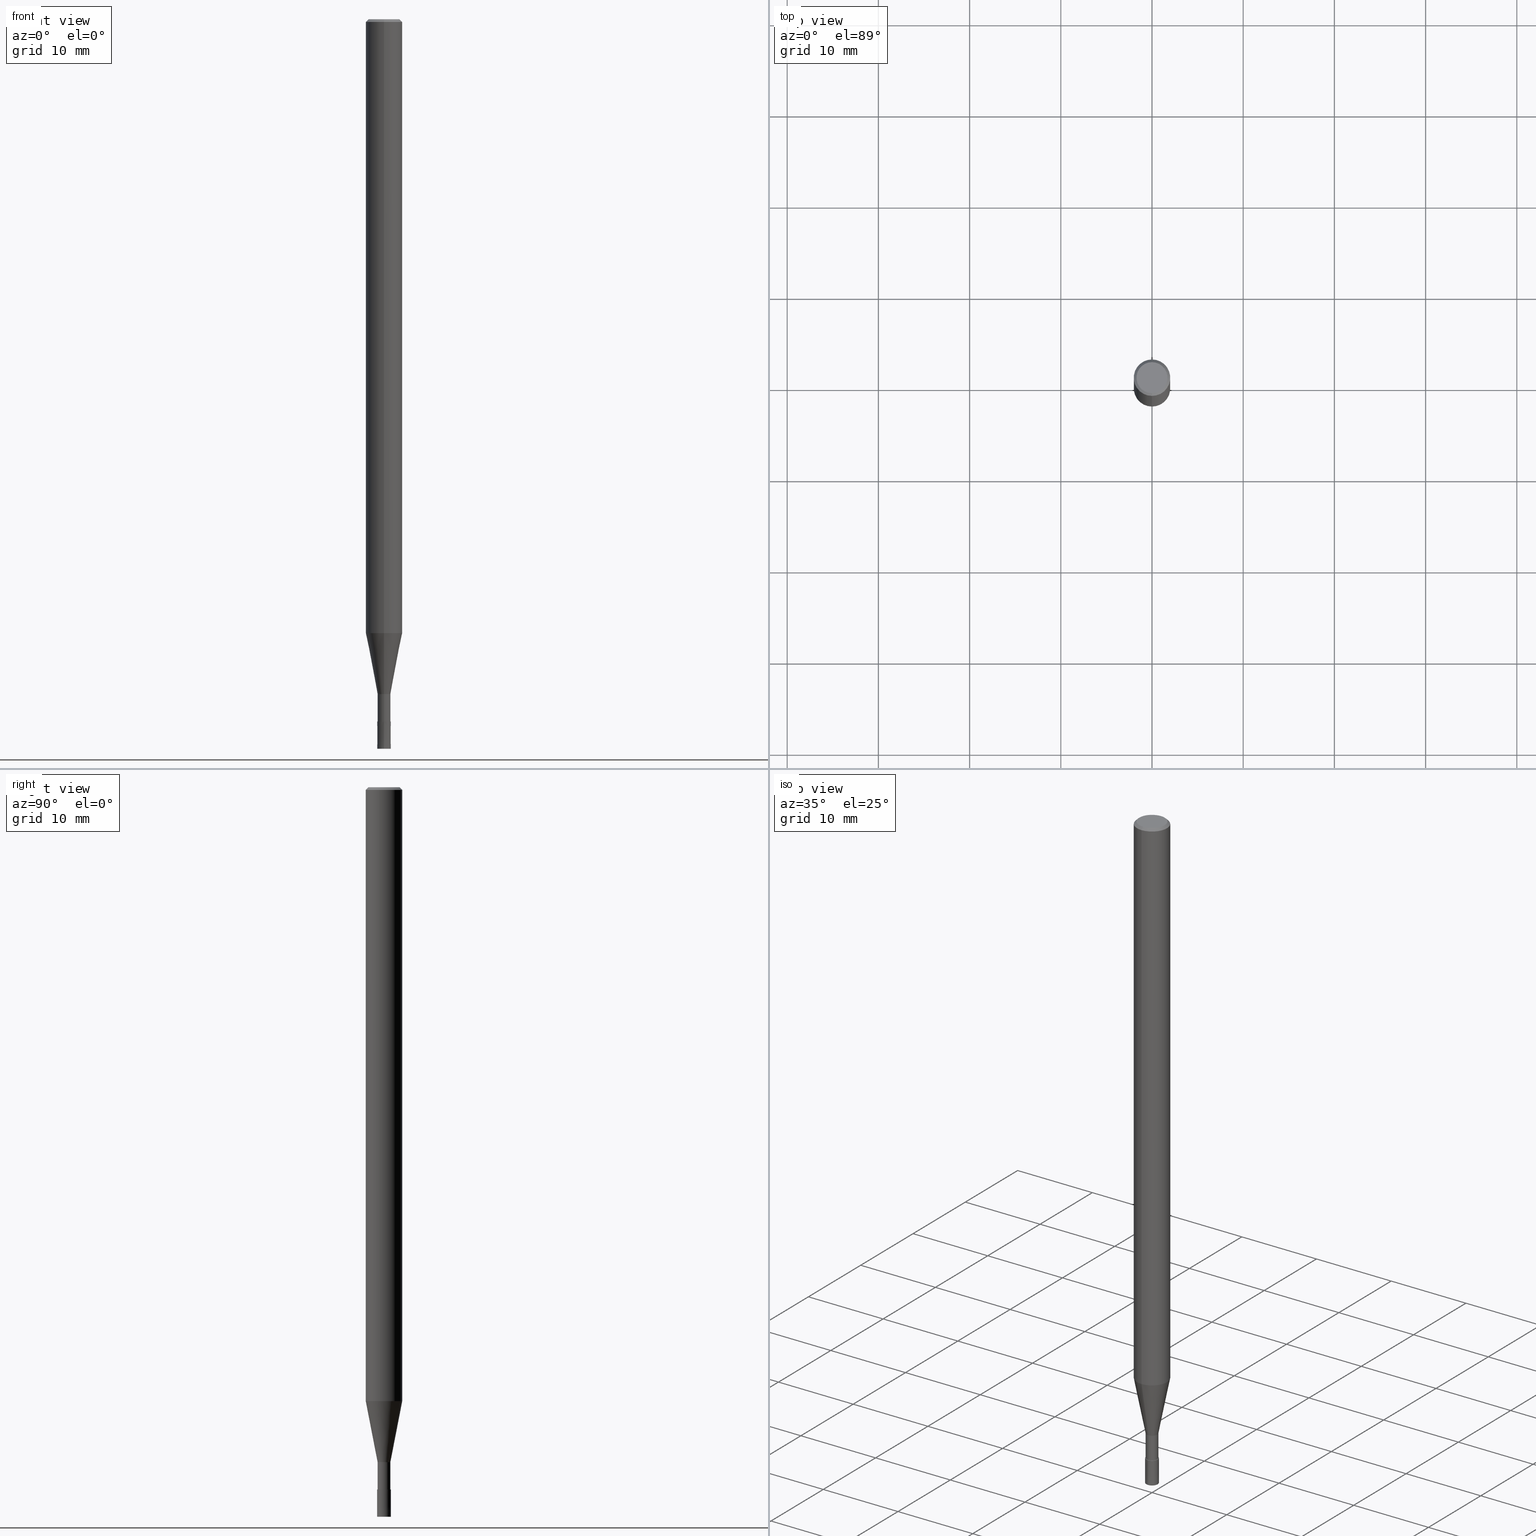
[diagram: canonical four-view strip — front | top / right | iso, engineering-drawing reading convention]
A machine part, canonical four-view strip (front | top / right | iso — engineering-drawing reading convention). The complete STEP part file that produces these views, byte-faithful:
ISO-10303-21;
HEADER;
FILE_DESCRIPTION(('no description'),'unknown implementation level');
FILE_NAME('CPRL2015-6-Huellk.stp','  ',('CIMSOURCE GmbH'),('CADClick - KiM GmbH - www.kimweb.de'),'unknown preprocess','ACIS','unknown authorization');
FILE_SCHEMA(('automotive_design'));
ENDSEC;
DATA;
#1=MECHANICAL_DESIGN_GEOMETRIC_PRESENTATION_REPRESENTATION(' ',(#14,#15,#16,#17,#18,#19,#20,#21,#22,#23,#24,#25,#26,#27,#28,#29,#30,#31,#32,#33,#34,#35,#36,#37,#38,#39,#40,#41,#42,#43,#44,#45,#46,#47,#48,#49,#50,#51,#52,#53,#54,#55,#56,#57,#58,#59,#60,#61,#62,#63,#64,#65,#66,#67,#68,#69,#70,#71,#72),#10);
#2=PRODUCT_DEFINITION_CONTEXT('',#73,'design');
#3=APPLICATION_PROTOCOL_DEFINITION('INTERNATIONAL STANDARD','automotive_design',1994,#73);
#4=PRODUCT_CATEGORY_RELATIONSHIP('NONE','NONE',#74,#75);
#5=SHAPE_DEFINITION_REPRESENTATION(#76,#77);
#6=PRODUCT_DEFINITION_CONTEXT('',#78,'design');
#7=APPLICATION_PROTOCOL_DEFINITION('INTERNATIONAL STANDARD','automotive_design',1994,#78);
#8=PRODUCT_CATEGORY_RELATIONSHIP('NONE','NONE',#79,#80);
#9=SHAPE_DEFINITION_REPRESENTATION(#81,#82);
#10= (GEOMETRIC_REPRESENTATION_CONTEXT(3)GLOBAL_UNCERTAINTY_ASSIGNED_CONTEXT((#85))GLOBAL_UNIT_ASSIGNED_CONTEXT((#87,#88,#89))REPRESENTATION_CONTEXT('NONE','WORKSPACE'));
#14=STYLED_ITEM('',(#91),#92);
#15=STYLED_ITEM('',(#93),#94);
#16=STYLED_ITEM('',(#95),#96);
#17=STYLED_ITEM('',(#97),#98);
#18=STYLED_ITEM('',(#99),#100);
#19=STYLED_ITEM('',(#101),#102);
#20=STYLED_ITEM('',(#103),#104);
#21=STYLED_ITEM('',(#105),#106);
#22=STYLED_ITEM('',(#107),#108);
#23=STYLED_ITEM('',(#109),#110);
#24=STYLED_ITEM('',(#111),#112);
#25=STYLED_ITEM('',(#113),#114);
#26=STYLED_ITEM('',(#115),#116);
#27=STYLED_ITEM('',(#117),#118);
#28=STYLED_ITEM('',(#119),#120);
#29=STYLED_ITEM('',(#121),#122);
#30=STYLED_ITEM('',(#123),#124);
#31=STYLED_ITEM('',(#125),#126);
#32=STYLED_ITEM('',(#127),#128);
#33=STYLED_ITEM('',(#129),#130);
#34=STYLED_ITEM('',(#131),#132);
#35=STYLED_ITEM('',(#133),#134);
#36=STYLED_ITEM('',(#135),#136);
#37=STYLED_ITEM('',(#137),#138);
#38=STYLED_ITEM('',(#139),#140);
#39=STYLED_ITEM('',(#141),#142);
#40=STYLED_ITEM('',(#143),#144);
#41=STYLED_ITEM('',(#145),#146);
#42=STYLED_ITEM('',(#147),#148);
#43=STYLED_ITEM('',(#149),#150);
#44=STYLED_ITEM('',(#151),#152);
#45=STYLED_ITEM('',(#153),#154);
#46=STYLED_ITEM('',(#155),#156);
#47=STYLED_ITEM('',(#157),#158);
#48=STYLED_ITEM('',(#159),#160);
#49=STYLED_ITEM('',(#161),#162);
#50=STYLED_ITEM('',(#163),#164);
#51=STYLED_ITEM('',(#165),#166);
#52=STYLED_ITEM('',(#167),#168);
#53=STYLED_ITEM('',(#169),#170);
#54=STYLED_ITEM('',(#171),#172);
#55=STYLED_ITEM('',(#173),#174);
#56=STYLED_ITEM('',(#175),#176);
#57=STYLED_ITEM('',(#177),#178);
#58=STYLED_ITEM('',(#179),#180);
#59=STYLED_ITEM('',(#181),#182);
#60=STYLED_ITEM('',(#183),#184);
#61=STYLED_ITEM('',(#185),#186);
#62=STYLED_ITEM('',(#187),#188);
#63=STYLED_ITEM('',(#189),#190);
#64=STYLED_ITEM('',(#191),#192);
#65=STYLED_ITEM('',(#193),#194);
#66=STYLED_ITEM('',(#195),#196);
#67=STYLED_ITEM('',(#197),#198);
#68=STYLED_ITEM('',(#199),#200);
#69=STYLED_ITEM('',(#201),#202);
#70=STYLED_ITEM('',(#203),#204);
#71=STYLED_ITEM('',(#205),#206);
#72=STYLED_ITEM('',(#207),#208);
#73=APPLICATION_CONTEXT(' ');
#74=PRODUCT_CATEGORY('part','NONE');
#75=PRODUCT_RELATED_PRODUCT_CATEGORY('detail',' ',(#209));
#76=PRODUCT_DEFINITION_SHAPE('NONE','NONE',#210);
#77=ADVANCED_BREP_SHAPE_REPRESENTATION('1',(#208,#211),#10);
#78=APPLICATION_CONTEXT(' ');
#79=PRODUCT_CATEGORY('part','NONE');
#80=PRODUCT_RELATED_PRODUCT_CATEGORY('detail',' ',(#212));
#81=PRODUCT_DEFINITION_SHAPE('NONE','NONE',#213);
#82=ADVANCED_BREP_SHAPE_REPRESENTATION('2',(#178,#214),#10);
#85=UNCERTAINTY_MEASURE_WITH_UNIT(LENGTH_MEASURE(1.0E-006),#87,'','');
#87= (CONVERSION_BASED_UNIT('MILLIMETRE',#217)LENGTH_UNIT()NAMED_UNIT(#220));
#88= (NAMED_UNIT(#222)PLANE_ANGLE_UNIT()SI_UNIT($,.RADIAN.));
#89= (NAMED_UNIT(#222)SOLID_ANGLE_UNIT()SI_UNIT($,.STERADIAN.));
#91=PRESENTATION_STYLE_ASSIGNMENT((#228));
#92=VERTEX_POINT('',#229);
#93=PRESENTATION_STYLE_ASSIGNMENT((#230));
#94=EDGE_CURVE('',#120,#158,#231,.T.);
#95=PRESENTATION_STYLE_ASSIGNMENT((#232));
#96=EDGE_CURVE('',#110,#180,#233,.T.);
#97=PRESENTATION_STYLE_ASSIGNMENT((#234));
#98=EDGE_CURVE('',#180,#174,#235,.T.);
#99=PRESENTATION_STYLE_ASSIGNMENT((#236));
#100=ADVANCED_FACE('',(#237),#238,.T.);
#101=PRESENTATION_STYLE_ASSIGNMENT((#239));
#102=EDGE_CURVE('',#158,#130,#240,.T.);
#103=PRESENTATION_STYLE_ASSIGNMENT((#241));
#104=EDGE_CURVE('',#114,#110,#242,.T.);
#105=PRESENTATION_STYLE_ASSIGNMENT((#243));
#106=ADVANCED_FACE('',(#244),#245,.T.);
#107=PRESENTATION_STYLE_ASSIGNMENT((#246));
#108=ADVANCED_FACE('',(#247),#248,.T.);
#109=PRESENTATION_STYLE_ASSIGNMENT((#249));
#110=VERTEX_POINT('',#250);
#111=PRESENTATION_STYLE_ASSIGNMENT((#251));
#112=EDGE_CURVE('',#150,#194,#252,.T.);
#113=PRESENTATION_STYLE_ASSIGNMENT((#253));
#114=VERTEX_POINT('',#254);
#115=PRESENTATION_STYLE_ASSIGNMENT((#255));
#116=EDGE_CURVE('',#140,#144,#256,.T.);
#117=PRESENTATION_STYLE_ASSIGNMENT((#257));
#118=EDGE_CURVE('',#92,#188,#258,.T.);
#119=PRESENTATION_STYLE_ASSIGNMENT((#259));
#120=VERTEX_POINT('',#260);
#121=PRESENTATION_STYLE_ASSIGNMENT((#261));
#122=EDGE_CURVE('',#188,#92,#262,.T.);
#123=PRESENTATION_STYLE_ASSIGNMENT((#263));
#124=EDGE_CURVE('',#164,#188,#264,.T.);
#125=PRESENTATION_STYLE_ASSIGNMENT((#265));
#126=EDGE_CURVE('',#130,#158,#266,.T.);
#127=PRESENTATION_STYLE_ASSIGNMENT((#267));
#128=VERTEX_POINT('',#268);
#129=PRESENTATION_STYLE_ASSIGNMENT((#269));
#130=VERTEX_POINT('',#270);
#131=PRESENTATION_STYLE_ASSIGNMENT((#271));
#132=EDGE_CURVE('',#120,#164,#272,.T.);
#133=PRESENTATION_STYLE_ASSIGNMENT((#273));
#134=EDGE_CURVE('',#164,#120,#274,.T.);
#135=PRESENTATION_STYLE_ASSIGNMENT((#275));
#136=ADVANCED_FACE('',(#276),#277,.T.);
#137=PRESENTATION_STYLE_ASSIGNMENT((#278));
#138=EDGE_CURVE('',#130,#164,#279,.T.);
#139=PRESENTATION_STYLE_ASSIGNMENT((#280));
#140=VERTEX_POINT('',#281);
#141=PRESENTATION_STYLE_ASSIGNMENT((#282));
#142=VERTEX_POINT('',#283);
#143=PRESENTATION_STYLE_ASSIGNMENT((#284));
#144=VERTEX_POINT('',#285);
#145=PRESENTATION_STYLE_ASSIGNMENT((#286));
#146=EDGE_CURVE('',#142,#128,#287,.T.);
#147=PRESENTATION_STYLE_ASSIGNMENT((#288));
#148=ADVANCED_FACE('',(#289),#290,.T.);
#149=PRESENTATION_STYLE_ASSIGNMENT((#291));
#150=VERTEX_POINT('',#292);
#151=PRESENTATION_STYLE_ASSIGNMENT((#293));
#152=EDGE_CURVE('',#174,#114,#294,.T.);
#153=PRESENTATION_STYLE_ASSIGNMENT((#295));
#154=EDGE_CURVE('',#144,#140,#296,.T.);
#155=PRESENTATION_STYLE_ASSIGNMENT((#297));
#156=EDGE_CURVE('',#180,#194,#298,.T.);
#157=PRESENTATION_STYLE_ASSIGNMENT((#299));
#158=VERTEX_POINT('',#300);
#159=PRESENTATION_STYLE_ASSIGNMENT((#301));
#160=EDGE_CURVE('',#174,#180,#302,.T.);
#161=PRESENTATION_STYLE_ASSIGNMENT((#303));
#162=EDGE_CURVE('',#150,#174,#304,.T.);
#163=PRESENTATION_STYLE_ASSIGNMENT((#305));
#164=VERTEX_POINT('',#306);
#165=PRESENTATION_STYLE_ASSIGNMENT((#307));
#166=EDGE_CURVE('',#194,#150,#308,.T.);
#167=PRESENTATION_STYLE_ASSIGNMENT((#309));
#168=EDGE_CURVE('',#92,#120,#310,.T.);
#169=PRESENTATION_STYLE_ASSIGNMENT((#311));
#170=ADVANCED_FACE('',(#312),#313,.T.);
#171=PRESENTATION_STYLE_ASSIGNMENT((#314));
#172=ADVANCED_FACE('',(#315,#316),#317,.T.);
#173=PRESENTATION_STYLE_ASSIGNMENT((#318));
#174=VERTEX_POINT('',#319);
#175=PRESENTATION_STYLE_ASSIGNMENT((#320));
#176=ADVANCED_FACE('',(#321),#322,.T.);
#177=PRESENTATION_STYLE_ASSIGNMENT((#323));
#178=MANIFOLD_SOLID_BREP('2',#324);
#179=PRESENTATION_STYLE_ASSIGNMENT((#325));
#180=VERTEX_POINT('',#326);
#181=PRESENTATION_STYLE_ASSIGNMENT((#327));
#182=ADVANCED_FACE('',(#328),#329,.T.);
#183=PRESENTATION_STYLE_ASSIGNMENT((#330));
#184=EDGE_CURVE('',#110,#114,#331,.T.);
#185=PRESENTATION_STYLE_ASSIGNMENT((#332));
#186=ADVANCED_FACE('',(#333),#334,.T.);
#187=PRESENTATION_STYLE_ASSIGNMENT((#335));
#188=VERTEX_POINT('',#336);
#189=PRESENTATION_STYLE_ASSIGNMENT((#337));
#190=ADVANCED_FACE('',(#338),#339,.T.);
#191=PRESENTATION_STYLE_ASSIGNMENT((#340));
#192=EDGE_CURVE('',#140,#142,#341,.T.);
#193=PRESENTATION_STYLE_ASSIGNMENT((#342));
#194=VERTEX_POINT('',#343);
#195=PRESENTATION_STYLE_ASSIGNMENT((#344));
#196=ADVANCED_FACE('',(#345),#346,.T.);
#197=PRESENTATION_STYLE_ASSIGNMENT((#347));
#198=EDGE_CURVE('',#128,#142,#348,.T.);
#199=PRESENTATION_STYLE_ASSIGNMENT((#349));
#200=EDGE_CURVE('',#128,#144,#350,.T.);
#201=PRESENTATION_STYLE_ASSIGNMENT((#351));
#202=ADVANCED_FACE('',(#352),#353,.T.);
#203=PRESENTATION_STYLE_ASSIGNMENT((#354));
#204=ADVANCED_FACE('',(#355),#356,.T.);
#205=PRESENTATION_STYLE_ASSIGNMENT((#357));
#206=ADVANCED_FACE('',(#358),#359,.T.);
#207=PRESENTATION_STYLE_ASSIGNMENT((#360));
#208=MANIFOLD_SOLID_BREP('1',#361);
#209=PRODUCT('1','1','PART-1-DESC',(#362));
#210=PRODUCT_DEFINITION('NONE','NONE',#363,#2);
#211=AXIS2_PLACEMENT_3D('',#364,#365,#366);
#212=PRODUCT('2','2','PART-2-DESC',(#367));
#213=PRODUCT_DEFINITION('NONE','NONE',#368,#6);
#214=AXIS2_PLACEMENT_3D('',#369,#370,#371);
#217=LENGTH_MEASURE_WITH_UNIT(LENGTH_MEASURE(1.0),#372);
#220=DIMENSIONAL_EXPONENTS(1.0,0.0,0.0,0.0,0.0,0.0,0.0);
#222=DIMENSIONAL_EXPONENTS(0.0,0.0,0.0,0.0,0.0,0.0,0.0);
#228=POINT_STYLE(' ',#373,POSITIVE_LENGTH_MEASURE(1.0E-006),#374);
#229=CARTESIAN_POINT('',(0.0,1.7,0.0));
#230=CURVE_STYLE('',#375,POSITIVE_LENGTH_MEASURE(1.0E-006),#376);
#231=LINE('',#377,#378);
#232=CURVE_STYLE('',#379,POSITIVE_LENGTH_MEASURE(1.0E-006),#380);
#233=LINE('',#381,#382);
#234=CURVE_STYLE('',#383,POSITIVE_LENGTH_MEASURE(1.0E-006),#384);
#235=CIRCLE('',#385,0.69995);
#236=SURFACE_STYLE_USAGE(.BOTH.,#386);
#237=FACE_OUTER_BOUND('',#387,.T.);
#238=CONICAL_SURFACE('',#388,0.74995,3.3333333320984E-005);
#239=CURVE_STYLE('',#389,POSITIVE_LENGTH_MEASURE(1.0E-006),#390);
#240=CIRCLE('',#391,2.0);
#241=CURVE_STYLE('',#392,POSITIVE_LENGTH_MEASURE(1.0E-006),#393);
#242=CIRCLE('',#394,1.99995);
#243=SURFACE_STYLE_USAGE(.BOTH.,#395);
#244=FACE_OUTER_BOUND('',#396,.T.);
#245=CONICAL_SURFACE('',#397,1.34995,0.191983983430966);
#246=SURFACE_STYLE_USAGE(.BOTH.,#398);
#247=FACE_OUTER_BOUND('',#399,.T.);
#248=PLANE('',#400);
#249=POINT_STYLE(' ',#401,POSITIVE_LENGTH_MEASURE(1.0E-006),#402);
#250=CARTESIAN_POINT('',(0.0,1.99995,-67.312));
#251=CURVE_STYLE('',#403,POSITIVE_LENGTH_MEASURE(1.0E-006),#404);
#252=CIRCLE('',#405,0.69995);
#253=POINT_STYLE(' ',#406,POSITIVE_LENGTH_MEASURE(1.0E-006),#407);
#254=CARTESIAN_POINT('',(2.44915147732706E-016,-1.99995,-67.312));
#255=CURVE_STYLE('',#408,POSITIVE_LENGTH_MEASURE(1.0E-006),#409);
#256=CIRCLE('',#410,0.7499);
#257=CURVE_STYLE('',#411,POSITIVE_LENGTH_MEASURE(1.0E-006),#412);
#258=CIRCLE('',#413,1.7);
#259=POINT_STYLE(' ',#414,POSITIVE_LENGTH_MEASURE(1.0E-006),#415);
#260=CARTESIAN_POINT('',(0.0,2.0,-0.299999999999997));
#261=CURVE_STYLE('',#416,POSITIVE_LENGTH_MEASURE(1.0E-006),#417);
#262=CIRCLE('',#418,1.7);
#263=CURVE_STYLE('',#419,POSITIVE_LENGTH_MEASURE(1.0E-006),#420);
#264=LINE('',#421,#422);
#265=CURVE_STYLE('',#423,POSITIVE_LENGTH_MEASURE(1.0E-006),#424);
#266=CIRCLE('',#425,2.0);
#267=POINT_STYLE(' ',#426,POSITIVE_LENGTH_MEASURE(1.0E-006),#427);
#268=CARTESIAN_POINT('',(9.18454765366783E-017,-0.75,-80.0));
#269=POINT_STYLE(' ',#428,POSITIVE_LENGTH_MEASURE(1.0E-006),#429);
#270=CARTESIAN_POINT('',(2.44921270764475E-016,-2.0,-67.312));
#271=CURVE_STYLE('',#430,POSITIVE_LENGTH_MEASURE(1.0E-006),#431);
#272=CIRCLE('',#432,2.0);
#273=CURVE_STYLE('',#433,POSITIVE_LENGTH_MEASURE(1.0E-006),#434);
#274=CIRCLE('',#435,2.0);
#275=SURFACE_STYLE_USAGE(.BOTH.,#436);
#276=FACE_OUTER_BOUND('',#437,.T.);
#277=CONICAL_SURFACE('',#438,0.74995,3.3333333320984E-005);
#278=CURVE_STYLE('',#439,POSITIVE_LENGTH_MEASURE(1.0E-006),#440);
#279=LINE('',#441,#442);
#280=POINT_STYLE(' ',#443,POSITIVE_LENGTH_MEASURE(1.0E-006),#444);
#281=CARTESIAN_POINT('',(0.0,0.7499,-77.0));
#282=POINT_STYLE(' ',#445,POSITIVE_LENGTH_MEASURE(1.0E-006),#446);
#283=CARTESIAN_POINT('',(0.0,0.75,-80.0));
#284=POINT_STYLE(' ',#447,POSITIVE_LENGTH_MEASURE(1.0E-006),#448);
#285=CARTESIAN_POINT('',(9.18332304731401E-017,-0.7499,-77.0));
#286=CURVE_STYLE('',#449,POSITIVE_LENGTH_MEASURE(1.0E-006),#450);
#287=CIRCLE('',#451,0.75);
#288=SURFACE_STYLE_USAGE(.BOTH.,#452);
#289=FACE_OUTER_BOUND('',#453,.T.);
#290=CONICAL_SURFACE('',#454,1.85,0.785398163397453);
#291=POINT_STYLE(' ',#455,POSITIVE_LENGTH_MEASURE(1.0E-006),#456);
#292=CARTESIAN_POINT('',(8.57163217357973E-017,-0.69995,-77.0));
#293=CURVE_STYLE('',#457,POSITIVE_LENGTH_MEASURE(1.0E-006),#458);
#294=LINE('',#459,#460);
#295=CURVE_STYLE('',#461,POSITIVE_LENGTH_MEASURE(1.0E-006),#462);
#296=CIRCLE('',#463,0.7499);
#297=CURVE_STYLE('',#464,POSITIVE_LENGTH_MEASURE(1.0E-006),#465);
#298=LINE('',#466,#467);
#299=POINT_STYLE(' ',#468,POSITIVE_LENGTH_MEASURE(1.0E-006),#469);
#300=CARTESIAN_POINT('',(0.0,2.0,-67.312));
#301=CURVE_STYLE('',#470,POSITIVE_LENGTH_MEASURE(1.0E-006),#471);
#302=CIRCLE('',#472,0.69995);
#303=CURVE_STYLE('',#473,POSITIVE_LENGTH_MEASURE(1.0E-006),#474);
#304=LINE('',#475,#476);
#305=POINT_STYLE(' ',#477,POSITIVE_LENGTH_MEASURE(1.0E-006),#478);
#306=CARTESIAN_POINT('',(2.44921270764475E-016,-2.0,-0.299999999999997));
#307=CURVE_STYLE('',#479,POSITIVE_LENGTH_MEASURE(1.0E-006),#480);
#308=CIRCLE('',#481,0.69995);
#309=CURVE_STYLE('',#482,POSITIVE_LENGTH_MEASURE(1.0E-006),#483);
#310=LINE('',#484,#485);
#311=SURFACE_STYLE_USAGE(.BOTH.,#486);
#312=FACE_OUTER_BOUND('',#487,.T.);
#313=PLANE('',#488);
#314=SURFACE_STYLE_USAGE(.BOTH.,#489);
#315=FACE_OUTER_BOUND('',#490,.T.);
#316=FACE_BOUND('',#491,.T.);
#317=PLANE('',#492);
#318=POINT_STYLE(' ',#493,POSITIVE_LENGTH_MEASURE(1.0E-006),#494);
#319=CARTESIAN_POINT('',(8.57163217357973E-017,-0.69995,-74.0));
#320=SURFACE_STYLE_USAGE(.BOTH.,#495);
#321=FACE_OUTER_BOUND('',#496,.T.);
#322=CYLINDRICAL_SURFACE('',#497,2.0);
#323=SURFACE_STYLE_USAGE(.BOTH.,#498);
#324=CLOSED_SHELL('',(#100,#108,#136,#182));
#325=POINT_STYLE(' ',#499,POSITIVE_LENGTH_MEASURE(1.0E-006),#500);
#326=CARTESIAN_POINT('',(0.0,0.69995,-74.0));
#327=SURFACE_STYLE_USAGE(.BOTH.,#501);
#328=FACE_OUTER_BOUND('',#502,.T.);
#329=PLANE('',#503);
#330=CURVE_STYLE('',#504,POSITIVE_LENGTH_MEASURE(1.0E-006),#505);
#331=CIRCLE('',#506,1.99995);
#332=SURFACE_STYLE_USAGE(.BOTH.,#507);
#333=FACE_OUTER_BOUND('',#508,.T.);
#334=CYLINDRICAL_SURFACE('',#509,0.69995);
#335=POINT_STYLE(' ',#510,POSITIVE_LENGTH_MEASURE(1.0E-006),#511);
#336=CARTESIAN_POINT('',(2.08183080149804E-016,-1.7,0.0));
#337=SURFACE_STYLE_USAGE(.BOTH.,#512);
#338=FACE_OUTER_BOUND('',#513,.T.);
#339=CYLINDRICAL_SURFACE('',#514,0.69995);
#340=CURVE_STYLE('',#515,POSITIVE_LENGTH_MEASURE(1.0E-006),#516);
#341=LINE('',#517,#518);
#342=POINT_STYLE(' ',#519,POSITIVE_LENGTH_MEASURE(1.0E-006),#520);
#343=CARTESIAN_POINT('',(0.0,0.69995,-77.0));
#344=SURFACE_STYLE_USAGE(.BOTH.,#521);
#345=FACE_OUTER_BOUND('',#522,.T.);
#346=CONICAL_SURFACE('',#523,1.34995,0.191983983430966);
#347=CURVE_STYLE('',#524,POSITIVE_LENGTH_MEASURE(1.0E-006),#525);
#348=CIRCLE('',#526,0.75);
#349=CURVE_STYLE('',#527,POSITIVE_LENGTH_MEASURE(1.0E-006),#528);
#350=LINE('',#529,#530);
#351=SURFACE_STYLE_USAGE(.BOTH.,#531);
#352=FACE_OUTER_BOUND('',#532,.T.);
#353=CONICAL_SURFACE('',#533,1.85,0.785398163397453);
#354=SURFACE_STYLE_USAGE(.BOTH.,#534);
#355=FACE_OUTER_BOUND('',#535,.T.);
#356=PLANE('',#536);
#357=SURFACE_STYLE_USAGE(.BOTH.,#537);
#358=FACE_OUTER_BOUND('',#538,.T.);
#359=CYLINDRICAL_SURFACE('',#539,2.0);
#360=SURFACE_STYLE_USAGE(.BOTH.,#540);
#361=CLOSED_SHELL('',(#186,#196,#206,#148,#172,#170,#202,#176,#106,#190,#204));
#362=PRODUCT_CONTEXT('',#73,'mechanical');
#363=PRODUCT_DEFINITION_FORMATION_WITH_SPECIFIED_SOURCE(' ','NONE',#209,.NOT_KNOWN.);
#364=CARTESIAN_POINT('',(0.0,0.0,0.0));
#365=DIRECTION('',(0.0,0.0,1.0));
#366=DIRECTION('',(1.0,0.0,0.0));
#367=PRODUCT_CONTEXT('',#78,'mechanical');
#368=PRODUCT_DEFINITION_FORMATION_WITH_SPECIFIED_SOURCE(' ','NONE',#212,.NOT_KNOWN.);
#369=CARTESIAN_POINT('',(0.0,0.0,0.0));
#370=DIRECTION('',(0.0,0.0,1.0));
#371=DIRECTION('',(1.0,0.0,0.0));
#372= (NAMED_UNIT(#220)LENGTH_UNIT()SI_UNIT(.MILLI.,.METRE.));
#373=PRE_DEFINED_MARKER('');
#374=COLOUR_RGB('',0.498039215803146,0.498039215803146,0.498039215803146);
#375=DRAUGHTING_PRE_DEFINED_CURVE_FONT('continuous');
#376=COLOUR_RGB('',0.498039215803146,0.498039215803146,0.498039215803146);
#377=CARTESIAN_POINT('',(-2.44921270764475E-016,2.0,-33.806));
#378=VECTOR('',#542,1.0);
#379=DRAUGHTING_PRE_DEFINED_CURVE_FONT('continuous');
#380=COLOUR_RGB('',0.498039215803146,0.498039215803146,0.498039215803146);
#381=CARTESIAN_POINT('',(-1.65315734734252E-016,1.34995,-70.656));
#382=VECTOR('',#543,1.0);
#383=DRAUGHTING_PRE_DEFINED_CURVE_FONT('continuous');
#384=COLOUR_RGB('',0.498039215803146,0.498039215803146,0.498039215803146);
#385=AXIS2_PLACEMENT_3D('',#544,#545,#546);
#386=SURFACE_SIDE_STYLE('',(#547));
#387=EDGE_LOOP('',(#548,#549,#550,#551));
#388=AXIS2_PLACEMENT_3D('',#552,#553,#554);
#389=DRAUGHTING_PRE_DEFINED_CURVE_FONT('continuous');
#390=COLOUR_RGB('',0.498039215803146,0.498039215803146,0.498039215803146);
#391=AXIS2_PLACEMENT_3D('',#555,#556,#557);
#392=DRAUGHTING_PRE_DEFINED_CURVE_FONT('continuous');
#393=COLOUR_RGB('',0.498039215803146,0.498039215803146,0.498039215803146);
#394=AXIS2_PLACEMENT_3D('',#558,#559,#560);
#395=SURFACE_SIDE_STYLE('',(#561));
#396=EDGE_LOOP('',(#562,#563,#564,#565));
#397=AXIS2_PLACEMENT_3D('',#566,#567,#568);
#398=SURFACE_SIDE_STYLE('',(#569));
#399=EDGE_LOOP('',(#570,#571));
#400=AXIS2_PLACEMENT_3D('',#572,#573,#574);
#401=PRE_DEFINED_MARKER('');
#402=COLOUR_RGB('',0.498039215803146,0.498039215803146,0.498039215803146);
#403=DRAUGHTING_PRE_DEFINED_CURVE_FONT('continuous');
#404=COLOUR_RGB('',0.498039215803146,0.498039215803146,0.498039215803146);
#405=AXIS2_PLACEMENT_3D('',#575,#576,#577);
#406=PRE_DEFINED_MARKER('');
#407=COLOUR_RGB('',0.498039215803146,0.498039215803146,0.498039215803146);
#408=DRAUGHTING_PRE_DEFINED_CURVE_FONT('continuous');
#409=COLOUR_RGB('',0.800000011920929,0.800000011920929,0.800000011920929);
#410=AXIS2_PLACEMENT_3D('',#578,#579,#580);
#411=DRAUGHTING_PRE_DEFINED_CURVE_FONT('continuous');
#412=COLOUR_RGB('',0.498039215803146,0.498039215803146,0.498039215803146);
#413=AXIS2_PLACEMENT_3D('',#581,#582,#583);
#414=PRE_DEFINED_MARKER('');
#415=COLOUR_RGB('',0.498039215803146,0.498039215803146,0.498039215803146);
#416=DRAUGHTING_PRE_DEFINED_CURVE_FONT('continuous');
#417=COLOUR_RGB('',0.498039215803146,0.498039215803146,0.498039215803146);
#418=AXIS2_PLACEMENT_3D('',#584,#585,#586);
#419=DRAUGHTING_PRE_DEFINED_CURVE_FONT('continuous');
#420=COLOUR_RGB('',0.498039215803146,0.498039215803146,0.498039215803146);
#421=CARTESIAN_POINT('',(2.2655217545714E-016,-1.85,-0.150000000000006));
#422=VECTOR('',#587,1.0);
#423=DRAUGHTING_PRE_DEFINED_CURVE_FONT('continuous');
#424=COLOUR_RGB('',0.498039215803146,0.498039215803146,0.498039215803146);
#425=AXIS2_PLACEMENT_3D('',#588,#589,#590);
#426=PRE_DEFINED_MARKER('');
#427=COLOUR_RGB('',0.800000011920929,0.800000011920929,0.800000011920929);
#428=PRE_DEFINED_MARKER('');
#429=COLOUR_RGB('',0.498039215803146,0.498039215803146,0.498039215803146);
#430=DRAUGHTING_PRE_DEFINED_CURVE_FONT('continuous');
#431=COLOUR_RGB('',0.498039215803146,0.498039215803146,0.498039215803146);
#432=AXIS2_PLACEMENT_3D('',#591,#592,#593);
#433=DRAUGHTING_PRE_DEFINED_CURVE_FONT('continuous');
#434=COLOUR_RGB('',0.498039215803146,0.498039215803146,0.498039215803146);
#435=AXIS2_PLACEMENT_3D('',#594,#595,#596);
#436=SURFACE_SIDE_STYLE('',(#597));
#437=EDGE_LOOP('',(#598,#599,#600,#601));
#438=AXIS2_PLACEMENT_3D('',#602,#603,#604);
#439=DRAUGHTING_PRE_DEFINED_CURVE_FONT('continuous');
#440=COLOUR_RGB('',0.498039215803146,0.498039215803146,0.498039215803146);
#441=CARTESIAN_POINT('',(2.44921270764475E-016,-2.0,-33.806));
#442=VECTOR('',#605,1.0);
#443=PRE_DEFINED_MARKER('');
#444=COLOUR_RGB('',0.800000011920929,0.800000011920929,0.800000011920929);
#445=PRE_DEFINED_MARKER('');
#446=COLOUR_RGB('',0.800000011920929,0.800000011920929,0.800000011920929);
#447=PRE_DEFINED_MARKER('');
#448=COLOUR_RGB('',0.800000011920929,0.800000011920929,0.800000011920929);
#449=DRAUGHTING_PRE_DEFINED_CURVE_FONT('continuous');
#450=COLOUR_RGB('',0.800000011920929,0.800000011920929,0.800000011920929);
#451=AXIS2_PLACEMENT_3D('',#606,#607,#608);
#452=SURFACE_SIDE_STYLE('',(#609));
#453=EDGE_LOOP('',(#610,#611,#612,#613));
#454=AXIS2_PLACEMENT_3D('',#614,#615,#616);
#455=PRE_DEFINED_MARKER('');
#456=COLOUR_RGB('',0.498039215803146,0.498039215803146,0.498039215803146);
#457=DRAUGHTING_PRE_DEFINED_CURVE_FONT('continuous');
#458=COLOUR_RGB('',0.498039215803146,0.498039215803146,0.498039215803146);
#459=CARTESIAN_POINT('',(1.65315734734252E-016,-1.34995,-70.656));
#460=VECTOR('',#617,1.0);
#461=DRAUGHTING_PRE_DEFINED_CURVE_FONT('continuous');
#462=COLOUR_RGB('',0.800000011920929,0.800000011920929,0.800000011920929);
#463=AXIS2_PLACEMENT_3D('',#618,#619,#620);
#464=DRAUGHTING_PRE_DEFINED_CURVE_FONT('continuous');
#465=COLOUR_RGB('',0.498039215803146,0.498039215803146,0.498039215803146);
#466=CARTESIAN_POINT('',(-8.57163217357973E-017,0.69995,-75.5));
#467=VECTOR('',#621,1.0);
#468=PRE_DEFINED_MARKER('');
#469=COLOUR_RGB('',0.498039215803146,0.498039215803146,0.498039215803146);
#470=DRAUGHTING_PRE_DEFINED_CURVE_FONT('continuous');
#471=COLOUR_RGB('',0.498039215803146,0.498039215803146,0.498039215803146);
#472=AXIS2_PLACEMENT_3D('',#622,#623,#624);
#473=DRAUGHTING_PRE_DEFINED_CURVE_FONT('continuous');
#474=COLOUR_RGB('',0.498039215803146,0.498039215803146,0.498039215803146);
#475=CARTESIAN_POINT('',(8.57163217357973E-017,-0.69995,-75.5));
#476=VECTOR('',#625,1.0);
#477=PRE_DEFINED_MARKER('');
#478=COLOUR_RGB('',0.498039215803146,0.498039215803146,0.498039215803146);
#479=DRAUGHTING_PRE_DEFINED_CURVE_FONT('continuous');
#480=COLOUR_RGB('',0.498039215803146,0.498039215803146,0.498039215803146);
#481=AXIS2_PLACEMENT_3D('',#626,#627,#628);
#482=DRAUGHTING_PRE_DEFINED_CURVE_FONT('continuous');
#483=COLOUR_RGB('',0.498039215803146,0.498039215803146,0.498039215803146);
#484=CARTESIAN_POINT('',(-2.2655217545714E-016,1.85,-0.150000000000006));
#485=VECTOR('',#629,1.0);
#486=SURFACE_SIDE_STYLE('',(#630));
#487=EDGE_LOOP('',(#631,#632));
#488=AXIS2_PLACEMENT_3D('',#633,#634,#635);
#489=SURFACE_SIDE_STYLE('',(#636));
#490=EDGE_LOOP('',(#637,#638));
#491=EDGE_LOOP('',(#639,#640));
#492=AXIS2_PLACEMENT_3D('',#641,#642,#643);
#493=PRE_DEFINED_MARKER('');
#494=COLOUR_RGB('',0.498039215803146,0.498039215803146,0.498039215803146);
#495=SURFACE_SIDE_STYLE('',(#644));
#496=EDGE_LOOP('',(#645,#646,#647,#648));
#497=AXIS2_PLACEMENT_3D('',#649,#650,#651);
#498=SURFACE_SIDE_STYLE('',(#652));
#499=PRE_DEFINED_MARKER('');
#500=COLOUR_RGB('',0.498039215803146,0.498039215803146,0.498039215803146);
#501=SURFACE_SIDE_STYLE('',(#653));
#502=EDGE_LOOP('',(#654,#655));
#503=AXIS2_PLACEMENT_3D('',#656,#657,#658);
#504=DRAUGHTING_PRE_DEFINED_CURVE_FONT('continuous');
#505=COLOUR_RGB('',0.498039215803146,0.498039215803146,0.498039215803146);
#506=AXIS2_PLACEMENT_3D('',#659,#660,#661);
#507=SURFACE_SIDE_STYLE('',(#662));
#508=EDGE_LOOP('',(#663,#664,#665,#666));
#509=AXIS2_PLACEMENT_3D('',#667,#668,#669);
#510=PRE_DEFINED_MARKER('');
#511=COLOUR_RGB('',0.498039215803146,0.498039215803146,0.498039215803146);
#512=SURFACE_SIDE_STYLE('',(#670));
#513=EDGE_LOOP('',(#671,#672,#673,#674));
#514=AXIS2_PLACEMENT_3D('',#675,#676,#677);
#515=DRAUGHTING_PRE_DEFINED_CURVE_FONT('continuous');
#516=COLOUR_RGB('',0.800000011920929,0.800000011920929,0.800000011920929);
#517=CARTESIAN_POINT('',(-9.18393535049092E-017,0.74995,-78.5));
#518=VECTOR('',#678,1.0);
#519=PRE_DEFINED_MARKER('');
#520=COLOUR_RGB('',0.498039215803146,0.498039215803146,0.498039215803146);
#521=SURFACE_SIDE_STYLE('',(#679));
#522=EDGE_LOOP('',(#680,#681,#682,#683));
#523=AXIS2_PLACEMENT_3D('',#684,#685,#686);
#524=DRAUGHTING_PRE_DEFINED_CURVE_FONT('continuous');
#525=COLOUR_RGB('',0.800000011920929,0.800000011920929,0.800000011920929);
#526=AXIS2_PLACEMENT_3D('',#687,#688,#689);
#527=DRAUGHTING_PRE_DEFINED_CURVE_FONT('continuous');
#528=COLOUR_RGB('',0.800000011920929,0.800000011920929,0.800000011920929);
#529=CARTESIAN_POINT('',(9.18393535049092E-017,-0.74995,-78.5));
#530=VECTOR('',#690,1.0);
#531=SURFACE_SIDE_STYLE('',(#691));
#532=EDGE_LOOP('',(#692,#693,#694,#695));
#533=AXIS2_PLACEMENT_3D('',#696,#697,#698);
#534=SURFACE_SIDE_STYLE('',(#699));
#535=EDGE_LOOP('',(#700,#701));
#536=AXIS2_PLACEMENT_3D('',#702,#703,#704);
#537=SURFACE_SIDE_STYLE('',(#705));
#538=EDGE_LOOP('',(#706,#707,#708,#709));
#539=AXIS2_PLACEMENT_3D('',#710,#711,#712);
#540=SURFACE_SIDE_STYLE('',(#713));
#542=DIRECTION('',(0.0,0.0,-1.0));
#543=DIRECTION('',(2.33663222250515E-017,-0.19080680213783,-0.981627609767541));
#544=CARTESIAN_POINT('',(0.0,0.0,-74.0));
#545=DIRECTION('',(0.0,0.0,-1.0));
#546=DIRECTION('',(0.0,1.0,0.0));
#547=SURFACE_STYLE_FILL_AREA(#714);
#548=ORIENTED_EDGE('',*,*,#192,.F.);
#549=ORIENTED_EDGE('',*,*,#116,.T.);
#550=ORIENTED_EDGE('',*,*,#200,.F.);
#551=ORIENTED_EDGE('',*,*,#146,.F.);
#552=CARTESIAN_POINT('',(0.0,0.0,-78.5));
#553=DIRECTION('',(0.0,-0.0,-1.0));
#554=DIRECTION('',(0.0,1.0,0.0));
#555=CARTESIAN_POINT('',(0.0,0.0,-67.312));
#556=DIRECTION('',(0.0,0.0,-1.0));
#557=DIRECTION('',(0.0,1.0,0.0));
#558=CARTESIAN_POINT('',(0.0,0.0,-67.312));
#559=DIRECTION('',(0.0,0.0,-1.0));
#560=DIRECTION('',(0.0,1.0,0.0));
#561=SURFACE_STYLE_FILL_AREA(#715);
#562=ORIENTED_EDGE('',*,*,#96,.T.);
#563=ORIENTED_EDGE('',*,*,#160,.F.);
#564=ORIENTED_EDGE('',*,*,#152,.T.);
#565=ORIENTED_EDGE('',*,*,#104,.T.);
#566=CARTESIAN_POINT('',(0.0,0.0,-70.656));
#567=DIRECTION('',(-0.0,-0.0,1.0));
#568=DIRECTION('',(0.0,1.0,0.0));
#569=SURFACE_STYLE_FILL_AREA(#716);
#570=ORIENTED_EDGE('',*,*,#116,.F.);
#571=ORIENTED_EDGE('',*,*,#154,.F.);
#572=CARTESIAN_POINT('',(0.0,0.37495,-77.0));
#573=DIRECTION('',(-0.0,0.0,1.0));
#574=DIRECTION('',(0.0,-1.0,0.0));
#575=CARTESIAN_POINT('',(0.0,0.0,-77.0));
#576=DIRECTION('',(0.0,0.0,-1.0));
#577=DIRECTION('',(0.0,1.0,0.0));
#578=CARTESIAN_POINT('',(0.0,0.0,-77.0));
#579=DIRECTION('',(0.0,0.0,-1.0));
#580=DIRECTION('',(0.0,1.0,0.0));
#581=CARTESIAN_POINT('',(0.0,0.0,0.0));
#582=DIRECTION('',(0.0,0.0,-1.0));
#583=DIRECTION('',(0.0,1.0,0.0));
#584=CARTESIAN_POINT('',(0.0,0.0,0.0));
#585=DIRECTION('',(0.0,0.0,-1.0));
#586=DIRECTION('',(0.0,1.0,0.0));
#587=DIRECTION('',(-8.6592745707194E-017,0.707106781186551,0.707106781186544));
#588=CARTESIAN_POINT('',(0.0,0.0,-67.312));
#589=DIRECTION('',(0.0,0.0,-1.0));
#590=DIRECTION('',(0.0,1.0,0.0));
#591=CARTESIAN_POINT('',(0.0,0.0,-0.299999999999997));
#592=DIRECTION('',(0.0,0.0,-1.0));
#593=DIRECTION('',(0.0,1.0,0.0));
#594=CARTESIAN_POINT('',(0.0,0.0,-0.299999999999997));
#595=DIRECTION('',(0.0,0.0,-1.0));
#596=DIRECTION('',(0.0,1.0,0.0));
#597=SURFACE_STYLE_FILL_AREA(#717);
#598=ORIENTED_EDGE('',*,*,#192,.T.);
#599=ORIENTED_EDGE('',*,*,#198,.F.);
#600=ORIENTED_EDGE('',*,*,#200,.T.);
#601=ORIENTED_EDGE('',*,*,#154,.T.);
#602=CARTESIAN_POINT('',(0.0,0.0,-78.5));
#603=DIRECTION('',(0.0,-0.0,-1.0));
#604=DIRECTION('',(0.0,1.0,0.0));
#605=DIRECTION('',(-0.0,-0.0,1.0));
#606=CARTESIAN_POINT('',(0.0,0.0,-80.0));
#607=DIRECTION('',(0.0,0.0,-1.0));
#608=DIRECTION('',(0.0,1.0,0.0));
#609=SURFACE_STYLE_FILL_AREA(#718);
#610=ORIENTED_EDGE('',*,*,#168,.F.);
#611=ORIENTED_EDGE('',*,*,#118,.T.);
#612=ORIENTED_EDGE('',*,*,#124,.F.);
#613=ORIENTED_EDGE('',*,*,#132,.F.);
#614=CARTESIAN_POINT('',(0.0,0.0,-0.150000000000006));
#615=DIRECTION('',(0.0,-0.0,-1.0));
#616=DIRECTION('',(0.0,1.0,0.0));
#617=DIRECTION('',(2.33663222250515E-017,-0.19080680213783,0.981627609767541));
#618=CARTESIAN_POINT('',(0.0,0.0,-77.0));
#619=DIRECTION('',(0.0,0.0,-1.0));
#620=DIRECTION('',(0.0,1.0,0.0));
#621=DIRECTION('',(0.0,0.0,-1.0));
#622=CARTESIAN_POINT('',(0.0,0.0,-74.0));
#623=DIRECTION('',(0.0,0.0,-1.0));
#624=DIRECTION('',(0.0,1.0,0.0));
#625=DIRECTION('',(-0.0,-0.0,1.0));
#626=CARTESIAN_POINT('',(0.0,0.0,-77.0));
#627=DIRECTION('',(0.0,0.0,-1.0));
#628=DIRECTION('',(0.0,1.0,0.0));
#629=DIRECTION('',(-8.6592745707194E-017,0.707106781186551,-0.707106781186544));
#630=SURFACE_STYLE_FILL_AREA(#719);
#631=ORIENTED_EDGE('',*,*,#118,.F.);
#632=ORIENTED_EDGE('',*,*,#122,.F.);
#633=CARTESIAN_POINT('',(0.0,0.85,0.0));
#634=DIRECTION('',(-0.0,0.0,1.0));
#635=DIRECTION('',(0.0,-1.0,0.0));
#636=SURFACE_STYLE_FILL_AREA(#720);
#637=ORIENTED_EDGE('',*,*,#102,.T.);
#638=ORIENTED_EDGE('',*,*,#126,.T.);
#639=ORIENTED_EDGE('',*,*,#184,.F.);
#640=ORIENTED_EDGE('',*,*,#104,.F.);
#641=CARTESIAN_POINT('',(0.0,1.0,-67.312));
#642=DIRECTION('',(0.0,0.0,-1.0));
#643=DIRECTION('',(0.0,1.0,0.0));
#644=SURFACE_STYLE_FILL_AREA(#721);
#645=ORIENTED_EDGE('',*,*,#94,.T.);
#646=ORIENTED_EDGE('',*,*,#126,.F.);
#647=ORIENTED_EDGE('',*,*,#138,.T.);
#648=ORIENTED_EDGE('',*,*,#134,.T.);
#649=CARTESIAN_POINT('',(0.0,0.0,-33.806));
#650=DIRECTION('',(-0.0,-0.0,1.0));
#651=DIRECTION('',(0.0,1.0,0.0));
#652=SURFACE_STYLE_FILL_AREA(#722);
#653=SURFACE_STYLE_FILL_AREA(#723);
#654=ORIENTED_EDGE('',*,*,#146,.T.);
#655=ORIENTED_EDGE('',*,*,#198,.T.);
#656=CARTESIAN_POINT('',(0.0,0.3725,-80.0));
#657=DIRECTION('',(0.0,0.0,-1.0));
#658=DIRECTION('',(0.0,1.0,0.0));
#659=CARTESIAN_POINT('',(0.0,0.0,-67.312));
#660=DIRECTION('',(0.0,0.0,-1.0));
#661=DIRECTION('',(0.0,1.0,0.0));
#662=SURFACE_STYLE_FILL_AREA(#724);
#663=ORIENTED_EDGE('',*,*,#156,.F.);
#664=ORIENTED_EDGE('',*,*,#98,.T.);
#665=ORIENTED_EDGE('',*,*,#162,.F.);
#666=ORIENTED_EDGE('',*,*,#166,.F.);
#667=CARTESIAN_POINT('',(0.0,0.0,-75.5));
#668=DIRECTION('',(-0.0,-0.0,1.0));
#669=DIRECTION('',(0.0,1.0,0.0));
#670=SURFACE_STYLE_FILL_AREA(#725);
#671=ORIENTED_EDGE('',*,*,#156,.T.);
#672=ORIENTED_EDGE('',*,*,#112,.F.);
#673=ORIENTED_EDGE('',*,*,#162,.T.);
#674=ORIENTED_EDGE('',*,*,#160,.T.);
#675=CARTESIAN_POINT('',(0.0,0.0,-75.5));
#676=DIRECTION('',(-0.0,-0.0,1.0));
#677=DIRECTION('',(0.0,1.0,0.0));
#678=DIRECTION('',(-4.08202117713969E-021,3.33333333148111E-005,-0.999999999444445));
#679=SURFACE_STYLE_FILL_AREA(#726);
#680=ORIENTED_EDGE('',*,*,#96,.F.);
#681=ORIENTED_EDGE('',*,*,#184,.T.);
#682=ORIENTED_EDGE('',*,*,#152,.F.);
#683=ORIENTED_EDGE('',*,*,#98,.F.);
#684=CARTESIAN_POINT('',(0.0,0.0,-70.656));
#685=DIRECTION('',(-0.0,-0.0,1.0));
#686=DIRECTION('',(0.0,1.0,0.0));
#687=CARTESIAN_POINT('',(0.0,0.0,-80.0));
#688=DIRECTION('',(0.0,0.0,-1.0));
#689=DIRECTION('',(0.0,1.0,0.0));
#690=DIRECTION('',(-4.08202117713969E-021,3.33333333148111E-005,0.999999999444445));
#691=SURFACE_STYLE_FILL_AREA(#727);
#692=ORIENTED_EDGE('',*,*,#168,.T.);
#693=ORIENTED_EDGE('',*,*,#134,.F.);
#694=ORIENTED_EDGE('',*,*,#124,.T.);
#695=ORIENTED_EDGE('',*,*,#122,.T.);
#696=CARTESIAN_POINT('',(0.0,0.0,-0.150000000000006));
#697=DIRECTION('',(0.0,-0.0,-1.0));
#698=DIRECTION('',(0.0,1.0,0.0));
#699=SURFACE_STYLE_FILL_AREA(#728);
#700=ORIENTED_EDGE('',*,*,#166,.T.);
#701=ORIENTED_EDGE('',*,*,#112,.T.);
#702=CARTESIAN_POINT('',(0.0,0.349975,-77.0));
#703=DIRECTION('',(0.0,0.0,-1.0));
#704=DIRECTION('',(0.0,1.0,0.0));
#705=SURFACE_STYLE_FILL_AREA(#729);
#706=ORIENTED_EDGE('',*,*,#94,.F.);
#707=ORIENTED_EDGE('',*,*,#132,.T.);
#708=ORIENTED_EDGE('',*,*,#138,.F.);
#709=ORIENTED_EDGE('',*,*,#102,.F.);
#710=CARTESIAN_POINT('',(0.0,0.0,-33.806));
#711=DIRECTION('',(-0.0,-0.0,1.0));
#712=DIRECTION('',(0.0,1.0,0.0));
#713=SURFACE_STYLE_FILL_AREA(#730);
#714=FILL_AREA_STYLE('',(#731));
#715=FILL_AREA_STYLE('',(#732));
#716=FILL_AREA_STYLE('',(#733));
#717=FILL_AREA_STYLE('',(#734));
#718=FILL_AREA_STYLE('',(#735));
#719=FILL_AREA_STYLE('',(#736));
#720=FILL_AREA_STYLE('',(#737));
#721=FILL_AREA_STYLE('',(#738));
#722=FILL_AREA_STYLE('',(#739));
#723=FILL_AREA_STYLE('',(#740));
#724=FILL_AREA_STYLE('',(#741));
#725=FILL_AREA_STYLE('',(#742));
#726=FILL_AREA_STYLE('',(#743));
#727=FILL_AREA_STYLE('',(#744));
#728=FILL_AREA_STYLE('',(#745));
#729=FILL_AREA_STYLE('',(#746));
#730=FILL_AREA_STYLE('',(#747));
#731=FILL_AREA_STYLE_COLOUR('',#748);
#732=FILL_AREA_STYLE_COLOUR('',#749);
#733=FILL_AREA_STYLE_COLOUR('',#750);
#734=FILL_AREA_STYLE_COLOUR('',#751);
#735=FILL_AREA_STYLE_COLOUR('',#752);
#736=FILL_AREA_STYLE_COLOUR('',#753);
#737=FILL_AREA_STYLE_COLOUR('',#754);
#738=FILL_AREA_STYLE_COLOUR('',#755);
#739=FILL_AREA_STYLE_COLOUR('',#756);
#740=FILL_AREA_STYLE_COLOUR('',#757);
#741=FILL_AREA_STYLE_COLOUR('',#758);
#742=FILL_AREA_STYLE_COLOUR('',#759);
#743=FILL_AREA_STYLE_COLOUR('',#760);
#744=FILL_AREA_STYLE_COLOUR('',#761);
#745=FILL_AREA_STYLE_COLOUR('',#762);
#746=FILL_AREA_STYLE_COLOUR('',#763);
#747=FILL_AREA_STYLE_COLOUR('',#764);
#748=COLOUR_RGB('',0.800000011920929,0.800000011920929,0.800000011920929);
#749=COLOUR_RGB('',0.498039215803146,0.498039215803146,0.498039215803146);
#750=COLOUR_RGB('',0.800000011920929,0.800000011920929,0.800000011920929);
#751=COLOUR_RGB('',0.800000011920929,0.800000011920929,0.800000011920929);
#752=COLOUR_RGB('',0.498039215803146,0.498039215803146,0.498039215803146);
#753=COLOUR_RGB('',0.498039215803146,0.498039215803146,0.498039215803146);
#754=COLOUR_RGB('',0.498039215803146,0.498039215803146,0.498039215803146);
#755=COLOUR_RGB('',0.498039215803146,0.498039215803146,0.498039215803146);
#756=COLOUR_RGB('',0.800000011920929,0.800000011920929,0.800000011920929);
#757=COLOUR_RGB('',0.800000011920929,0.800000011920929,0.800000011920929);
#758=COLOUR_RGB('',0.498039215803146,0.498039215803146,0.498039215803146);
#759=COLOUR_RGB('',0.498039215803146,0.498039215803146,0.498039215803146);
#760=COLOUR_RGB('',0.498039215803146,0.498039215803146,0.498039215803146);
#761=COLOUR_RGB('',0.498039215803146,0.498039215803146,0.498039215803146);
#762=COLOUR_RGB('',0.498039215803146,0.498039215803146,0.498039215803146);
#763=COLOUR_RGB('',0.498039215803146,0.498039215803146,0.498039215803146);
#764=COLOUR_RGB('',0.498039215803146,0.498039215803146,0.498039215803146);
#765=AXIS2_PLACEMENT_3D('PCS',#766,#767,#768);
#766=CARTESIAN_POINT('',(0.0,0.0,0.0));
#767=DIRECTION('',(0.0,0.0,1.0));
#768=DIRECTION('',(1.0,0.0,0.0));
#769=AXIS2_PLACEMENT_3D('CIP',#770,#771,#772);
#770=CARTESIAN_POINT('',(0.0,0.0,-80.0));
#771=DIRECTION('',(0.0,0.0,1.0));
#772=DIRECTION('',(1.0,0.0,0.0));
#773=AXIS2_PLACEMENT_3D('CRP',#774,#775,#776);
#774=CARTESIAN_POINT('',(-0.75,0.0,-80.0));
#775=DIRECTION('',(0.0,0.0,1.0));
#776=DIRECTION('',(1.0,0.0,0.0));
#777=AXIS2_PLACEMENT_3D('MCS',#778,#779,#780);
#778=CARTESIAN_POINT('',(0.0,0.0,-67.312));
#779=DIRECTION('',(0.0,0.0,1.0));
#780=DIRECTION('',(1.0,0.0,0.0));
#781=CONSTRUCTIVE_GEOMETRY_REPRESENTATION_RELATIONSHIP('coordinate systems',$,#77,#782);
#782=CONSTRUCTIVE_GEOMETRY_REPRESENTATION('coordinate systems',(#765,#769,#773,#777),#10);
ENDSEC;
END-ISO-10303-21;
